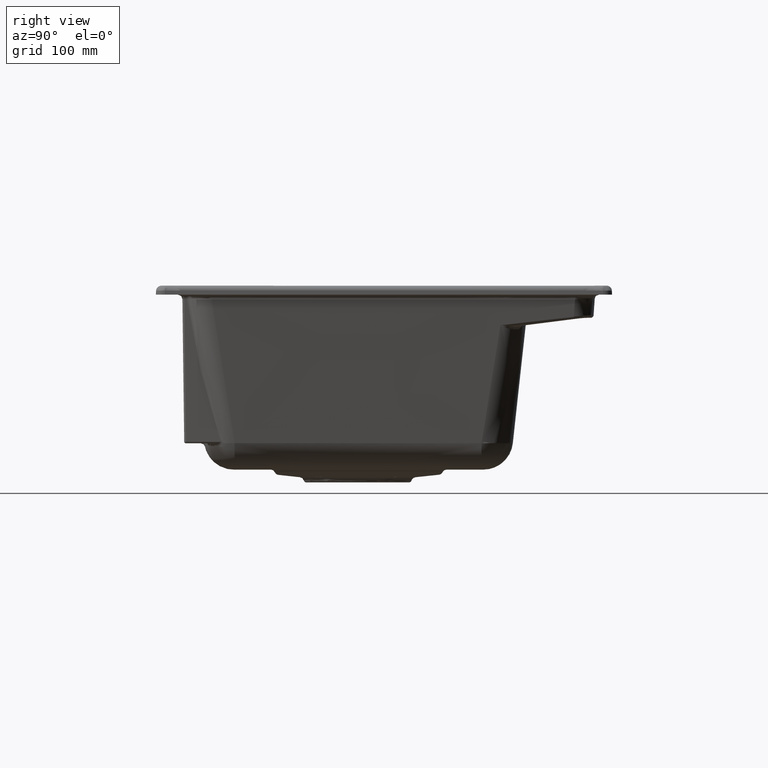
[diagram: clean part render]
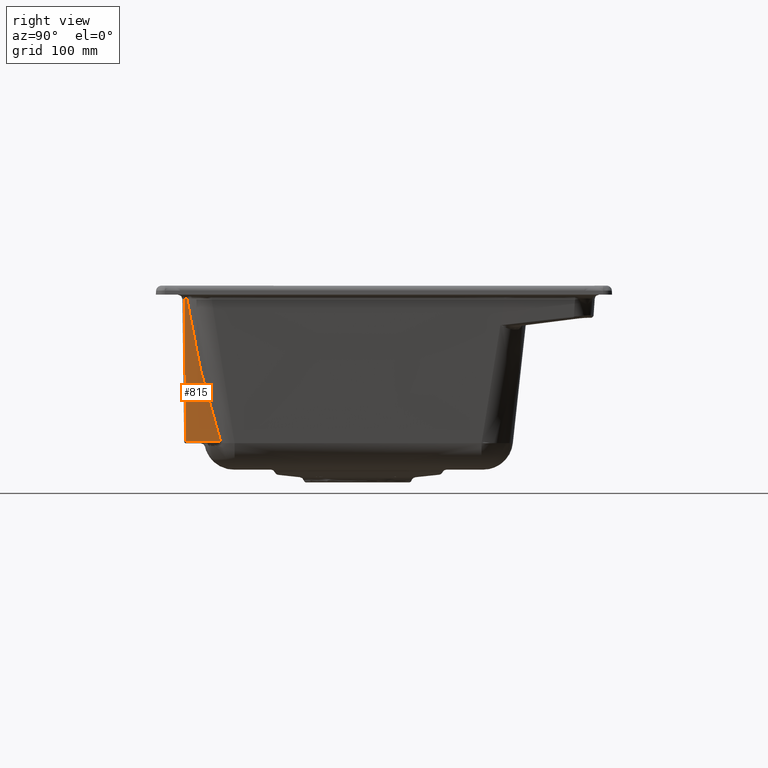
[diagram: same view with one face highlighted and labeled with its STEP entity id]
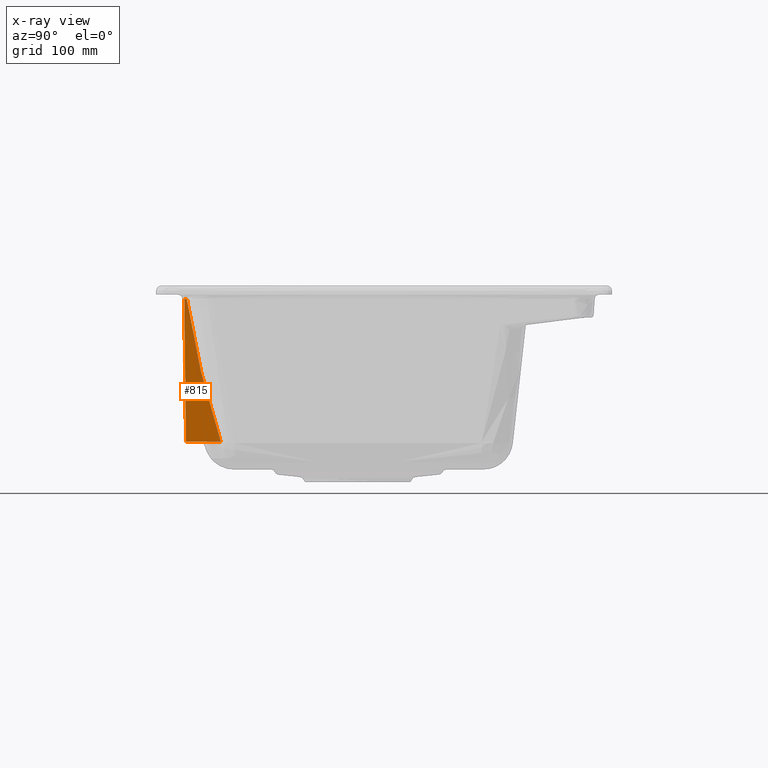
[diagram: x-ray of the same camera — body ghosted, the highlighted face saturated]
A machine part, right view. The second image highlights one B-rep face of the part: STEP entity #815.
The next image is the same camera in x-ray: the body ghosted, the highlighted face saturated — about 0% of this face is hidden behind the body in this view.
In plain terms, the highlighted planar face has unit normal (-1, 0, 0.0092).
Its self-contained STEP definition (entity closure, byte-faithful):
#428=PLANE('',#5522);
#815=ADVANCED_FACE('',(#1274),#428,.F.);
#1274=FACE_OUTER_BOUND('',#1638,.T.);
#1638=EDGE_LOOP('',(#2661,#2662,#2663,#2664,#2665));
#2661=ORIENTED_EDGE('',*,*,#4454,.F.);
#2662=ORIENTED_EDGE('',*,*,#4453,.F.);
#2663=ORIENTED_EDGE('',*,*,#4357,.F.);
#2664=ORIENTED_EDGE('',*,*,#4472,.T.);
#2665=ORIENTED_EDGE('',*,*,#4390,.F.);
#3743=VERTEX_POINT('',#12686);
#3744=VERTEX_POINT('',#12705);
#3760=VERTEX_POINT('',#13142);
#3762=VERTEX_POINT('',#13146);
#3799=VERTEX_POINT('',#13664);
#4357=EDGE_CURVE('',#3743,#3744,#5110,.T.);
#4390=EDGE_CURVE('',#3760,#3762,#5126,.T.);
#4453=EDGE_CURVE('',#3744,#3799,#5159,.T.);
#4454=EDGE_CURVE('',#3799,#3760,#5160,.T.);
#4472=EDGE_CURVE('',#3743,#3762,#5178,.T.);
#5110=B_SPLINE_CURVE_WITH_KNOTS('',1,(#12703,#12704),.UNSPECIFIED.,.F.,
 .F.,(2,2),(0.,1.),.UNSPECIFIED.);
#5126=B_SPLINE_CURVE_WITH_KNOTS('',1,(#13144,#13145),.UNSPECIFIED.,.F.,
 .F.,(2,2),(0.,1.),.UNSPECIFIED.);
#5159=B_SPLINE_CURVE_WITH_KNOTS('',3,(#13656,#13657,#13658,#13659,#13660,
#13661,#13662,#13663),.UNSPECIFIED.,.F.,.F.,(4,2,2,4),(0.,0.140552747254988,
0.557856271342603,1.),.UNSPECIFIED.);
#5160=B_SPLINE_CURVE_WITH_KNOTS('',3,(#13665,#13666,#13667,#13668),
 .UNSPECIFIED.,.F.,.F.,(4,4),(0.,1.),.UNSPECIFIED.);
#5178=B_SPLINE_CURVE_WITH_KNOTS('',3,(#14001,#14002,#14003,#14004,#14005,
#14006,#14007,#14008),.UNSPECIFIED.,.F.,.F.,(4,2,2,4),(0.,0.25,0.5,1.),
 .UNSPECIFIED.);
#5522=AXIS2_PLACEMENT_3D('',#14009,#5853,#5854);
#5853=DIRECTION('',(-0.999957297910939,0.,0.00924133944049866));
#5854=DIRECTION('',(0.00924133944049865,0.,0.999957297910939));
#12686=CARTESIAN_POINT('',(244.666748835687,-153.168202585491,-174.107988402554));
#12703=CARTESIAN_POINT('',(244.666748835687,-153.168202585491,-174.107988402554));
#12704=CARTESIAN_POINT('',(244.666748835688,-191.887457816534,-174.107988402554));
#12705=CARTESIAN_POINT('',(244.666748835688,-191.887457816534,-174.107988402554));
#13142=CARTESIAN_POINT('',(246.13760958514,-193.89400159711,-14.9537932671472));
#13144=CARTESIAN_POINT('',(246.137609584811,-193.89400159711,-14.9537933027975));
#13145=CARTESIAN_POINT('',(246.137609584811,-190.928016937889,-14.9537933027975));
#13146=CARTESIAN_POINT('',(246.137609584811,-190.928016937889,-14.953793302797));
#13656=CARTESIAN_POINT('',(244.666748835688,-191.887457816534,-174.107988402554));
#13657=CARTESIAN_POINT('',(244.734794041377,-191.980284307435,-166.745170441441));
#13658=CARTESIAN_POINT('',(244.802839247058,-192.073110870638,-159.382352481239));
#13659=CARTESIAN_POINT('',(245.072911838742,-192.441541383375,-130.159201361375));
#13660=CARTESIAN_POINT('',(245.274939224678,-192.717145897588,-108.298868208832));
#13661=CARTESIAN_POINT('',(245.691019779326,-193.284761734128,-63.2769544681467));
#13662=CARTESIAN_POINT('',(245.905072948028,-193.576773134385,-40.1153738809869));
#13663=CARTESIAN_POINT('',(246.119126116647,-193.86878524674,-16.9537933028043));
#13664=CARTESIAN_POINT('',(246.119126116647,-193.86878524674,-16.9537933028043));
#13665=CARTESIAN_POINT('',(246.119126116515,-193.868786379648,-16.9537933170854));
#13666=CARTESIAN_POINT('',(246.125287272723,-193.877191452135,-16.2871266337724));
#13667=CARTESIAN_POINT('',(246.131448428932,-193.885596524623,-15.6204599504602));
#13668=CARTESIAN_POINT('',(246.13760958514,-193.89400159711,-14.9537932671472));
#14001=CARTESIAN_POINT('',(244.666748835687,-153.168202585491,-174.107988402554));
#14002=CARTESIAN_POINT('',(244.785312833987,-157.917004159303,-161.278794525125));
#14003=CARTESIAN_POINT('',(244.906104446746,-161.813519904962,-148.208562067774));
#14004=CARTESIAN_POINT('',(245.149174544282,-169.037673804106,-121.907210461733));
#14005=CARTESIAN_POINT('',(245.271623308307,-172.307738520363,-108.657666280915));
#14006=CARTESIAN_POINT('',(245.640781738326,-181.377197638114,-68.7129517122556));
#14007=CARTESIAN_POINT('',(245.888568292762,-186.51880432741,-41.9012568246147));
#14008=CARTESIAN_POINT('',(246.137609584811,-190.928016937889,-14.953793302797));
#14009=CARTESIAN_POINT('',(244.238987559651,-214.908553763686,-220.3938122802));